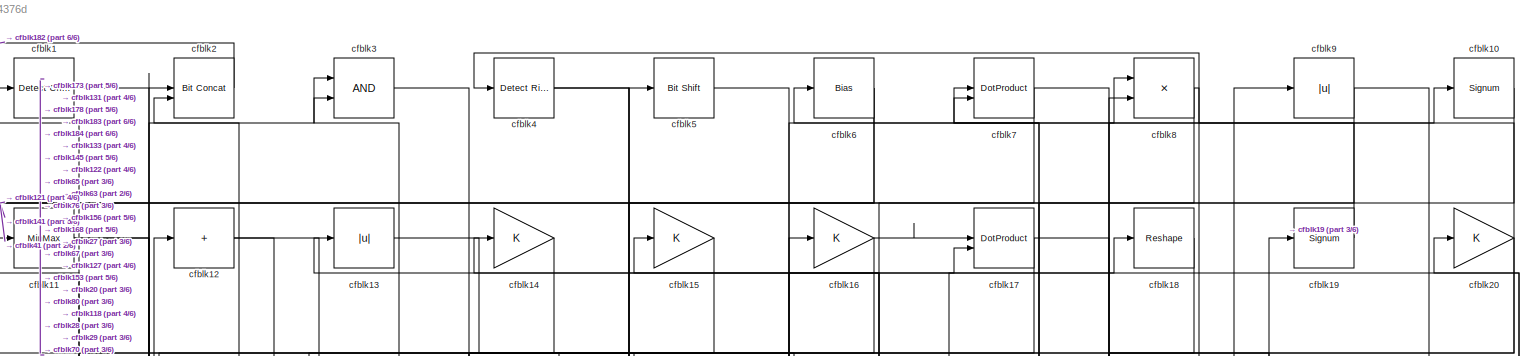
[diagram: root canvas - part 1/6, full width, top band]
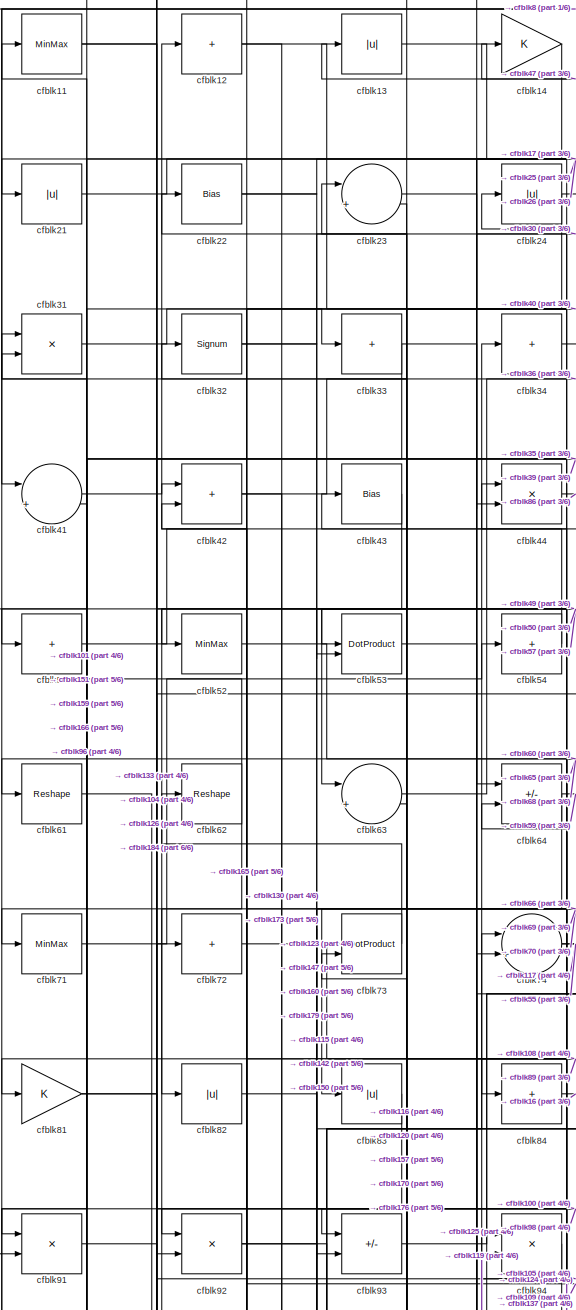
[diagram: root canvas - part 2/6, top left region]
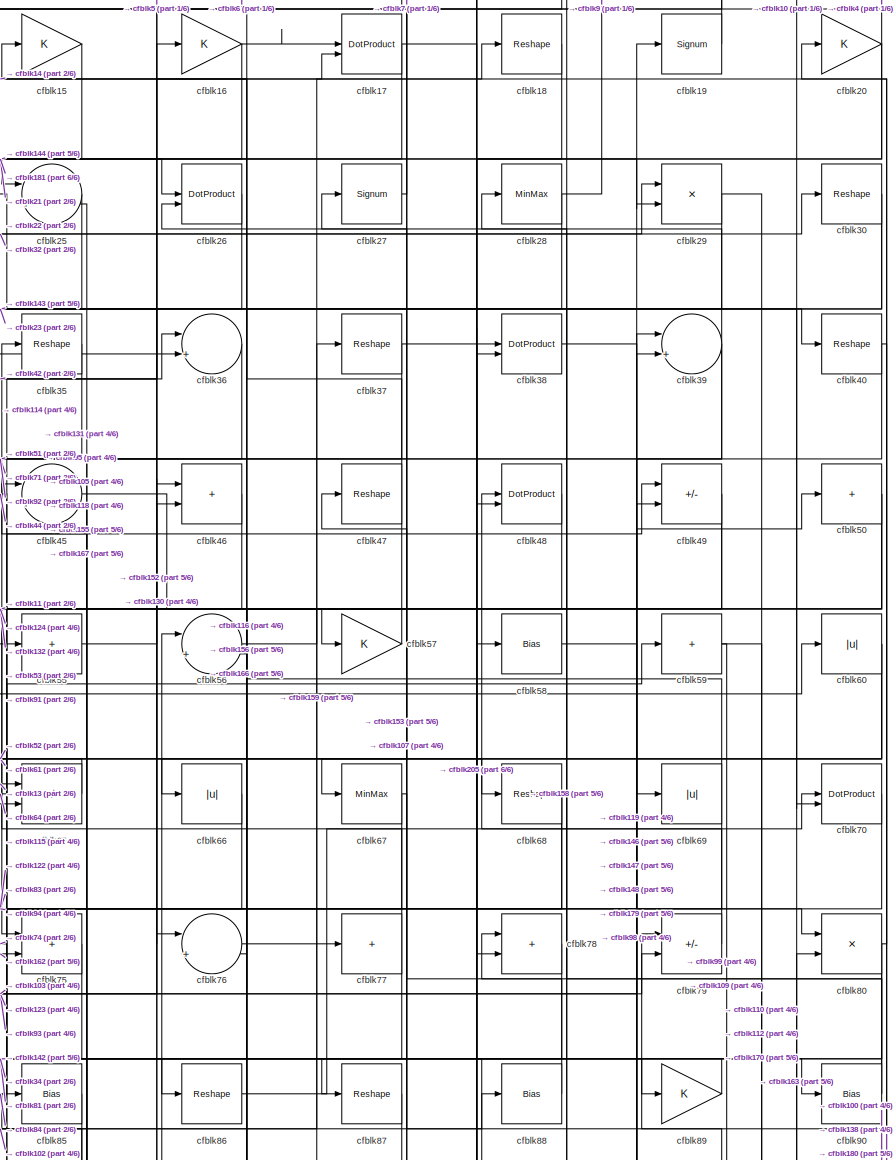
[diagram: root canvas - part 3/6, top right region]
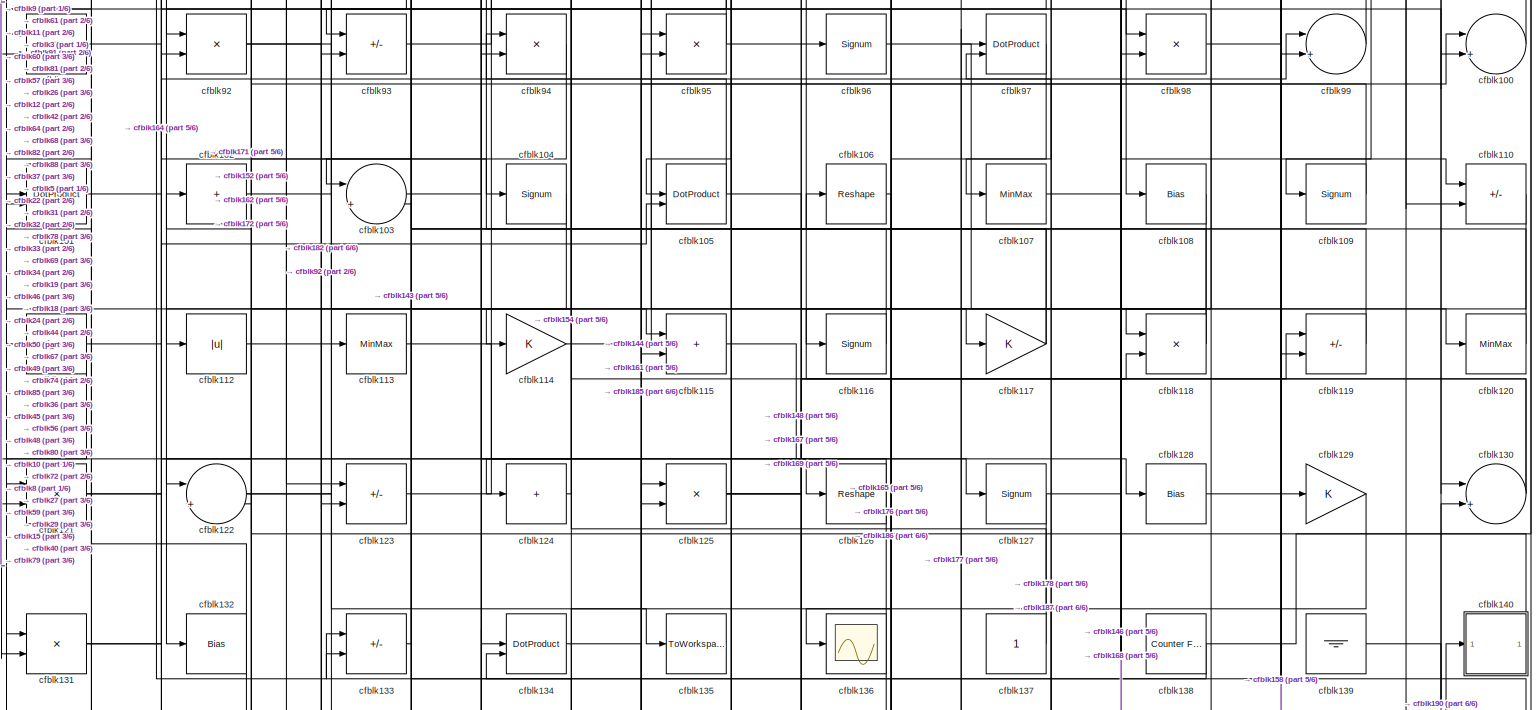
[diagram: root canvas - part 4/6, full width, middle band]
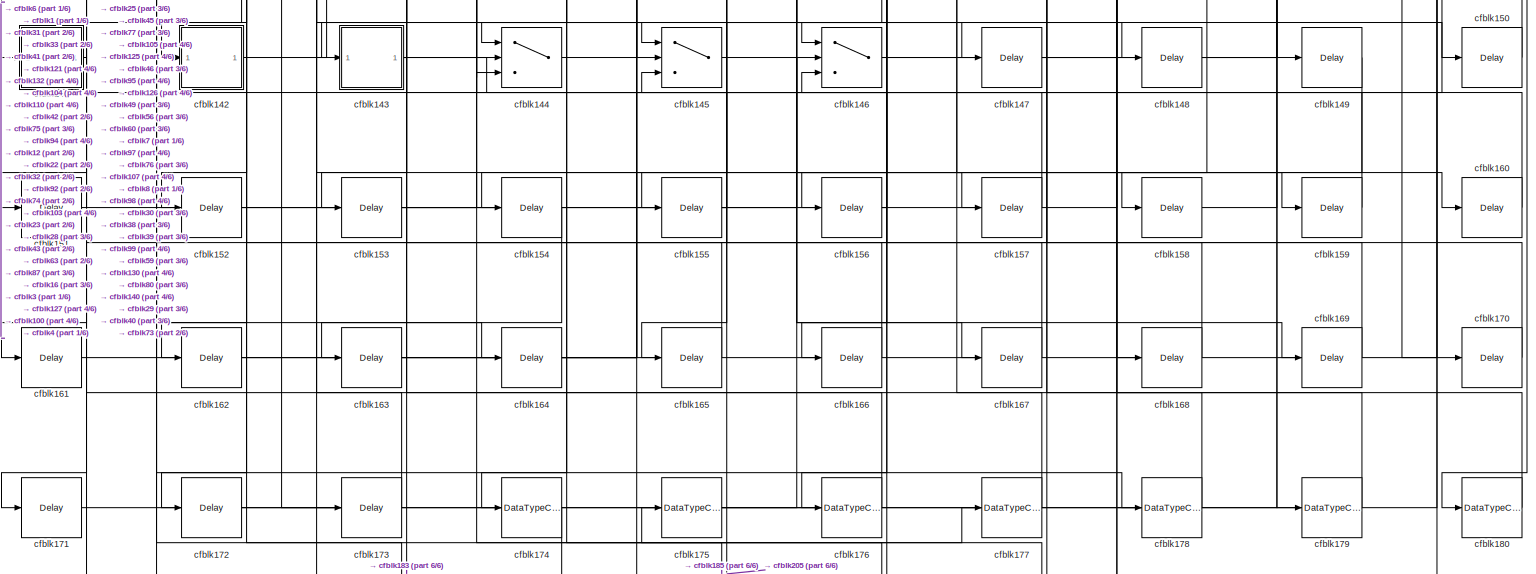
[diagram: root canvas - part 5/6, full width, bottom band]
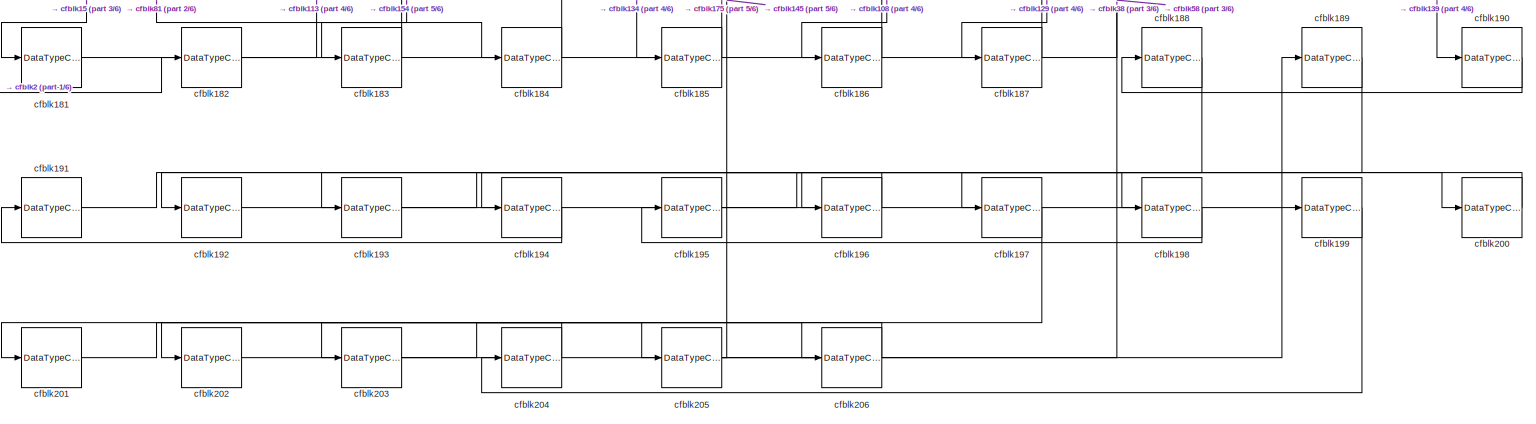
[diagram: root canvas - part 6/6, full width, bottom band]
MODEL slx_11661004376d
KIND model
CONFIG AbsTol = auto
CONFIG EnableMultiTasking = off
CONFIG FixedStep = auto
CONFIG MaxStep = auto
CONFIG MinStep = auto
CONFIG RelTol = 1e-3
CONFIG SampleTimeConstraint = Unconstrained
CONFIG SolverName = VariableStepAuto
CONFIG StartTime = 0.0
CONFIG StopTime = 10.0
BLOCK [Reference] cfblk1  REF=simulink/Logic and Bit
Operations/Detect
Change
  LibrarySourceBlock = hdlsllib/Logic and Bit\nOperations/Detect\nChange
  SourceBlock = simulink/Logic and Bit\nOperations/Detect\nChange
  SourceType = Detect Change
BLOCK [Signum] cfblk10
BLOCK [Sum] cfblk100
  Inputs = |++
BLOCK [DotProduct] cfblk101
  OutDataTypeStr = Inherit: Inherit via internal rule
BLOCK [Sum] cfblk102
  IconShape = rectangular
  Inputs = +
BLOCK [Sum] cfblk103
  Inputs = |++
BLOCK [Signum] cfblk104
BLOCK [DotProduct] cfblk105
  OutDataTypeStr = Inherit: Inherit via internal rule
BLOCK [Reshape] cfblk106
BLOCK [MinMax] cfblk107
BLOCK [Bias] cfblk108
  Bias = 0.0
  SaturateOnIntegerOverflow = off
BLOCK [Signum] cfblk109
BLOCK [MinMax] cfblk11
BLOCK [Sum] cfblk110
  IconShape = rectangular
  Inputs = +-
BLOCK [Signum] cfblk111
BLOCK [Abs] cfblk112
  SaturateOnIntegerOverflow = off
BLOCK [MinMax] cfblk113
BLOCK [Gain] cfblk114
BLOCK [Sum] cfblk115
  IconShape = rectangular
BLOCK [Signum] cfblk116
BLOCK [Gain] cfblk117
BLOCK [Product] cfblk118
  Inputs = */
  RndMeth = Zero
  SaturateOnIntegerOverflow = on
BLOCK [Sum] cfblk119
  IconShape = rectangular
  Inputs = +-
BLOCK [Sum] cfblk12
  IconShape = rectangular
  Inputs = +
BLOCK [MinMax] cfblk120
BLOCK [Product] cfblk121
  Inputs = */
  RndMeth = Zero
  SaturateOnIntegerOverflow = on
BLOCK [Sum] cfblk122
  Inputs = |++
BLOCK [Sum] cfblk123
  IconShape = rectangular
  Inputs = +-
BLOCK [Sum] cfblk124
  IconShape = rectangular
  Inputs = +
BLOCK [Product] cfblk125
  Inputs = */
  RndMeth = Zero
  SaturateOnIntegerOverflow = on
BLOCK [Reshape] cfblk126
BLOCK [Signum] cfblk127
BLOCK [Bias] cfblk128
  Bias = 0.0
  SaturateOnIntegerOverflow = off
BLOCK [Gain] cfblk129
BLOCK [Abs] cfblk13
  SaturateOnIntegerOverflow = off
BLOCK [Sum] cfblk130
  Inputs = |++
BLOCK [Product] cfblk131
  Inputs = */
  RndMeth = Zero
  SaturateOnIntegerOverflow = on
BLOCK [Bias] cfblk132
  Bias = 0.0
  SaturateOnIntegerOverflow = off
BLOCK [Sum] cfblk133
  IconShape = rectangular
  Inputs = +-
BLOCK [DotProduct] cfblk134
  OutDataTypeStr = Inherit: Inherit via internal rule
BLOCK [ToWorkspace] cfblk135
  MaxDataPoints = inf
  SampleTime = -1
  SaveFormat = Timeseries
  VariableName = simout
BLOCK [Scope] cfblk136
  Floating = off
  NumInputPorts = 1
  ScopeSpecificationString = Simulink.scopes.TimeScopeBlockCfg('CurrentConfiguration', extmgr.ConfigurationSet(extmgr.Configuration('Core','General UI',true),extmgr.Configuration('Core','Source UI',true),extmgr.Configuration('Sources','WiredSimulink',true,'DataLoggingVariableName','ScopeData2','DataLoggingSaveFormat','Array','DataLoggingLimitDataPoints',true,'DataLoggingDecimation','1'),extmgr.Configuration('Visuals','Time Do...<+868ch>
BLOCK [Constant] cfblk137
  SampleTime = -1
BLOCK [Reference] cfblk138  REF=hdlsllib/Sources/Counter
Free-Running
  SourceBlock = hdlsllib/Sources/Counter\nFree-Running
  SourceType = Counter Free-Running
BLOCK [Ground] cfblk139
BLOCK [Gain] cfblk14
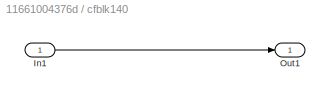
BLOCK [SubSystem] cfblk140
  LibrarySourceBlock = hdlsllib/Ports &\nSubsystems/Subsystem
BLOCK [Inport] cfblk140/In1
BLOCK [Outport] cfblk140/Out1
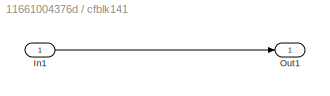
BLOCK [SubSystem] cfblk141
  LibrarySourceBlock = hdlsllib/Ports &\nSubsystems/Subsystem
BLOCK [Inport] cfblk141/In1
BLOCK [Outport] cfblk141/Out1
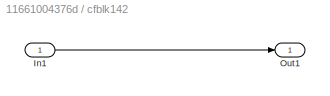
BLOCK [SubSystem] cfblk142
  LibrarySourceBlock = hdlsllib/Ports &\nSubsystems/Subsystem
BLOCK [Inport] cfblk142/In1
BLOCK [Outport] cfblk142/Out1
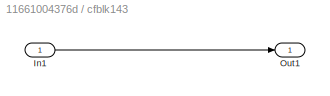
BLOCK [SubSystem] cfblk143
  LibrarySourceBlock = hdlsllib/Ports &\nSubsystems/Subsystem
BLOCK [Inport] cfblk143/In1
BLOCK [Outport] cfblk143/Out1
BLOCK [Switch] cfblk144
  InputSameDT = off
  SaturateOnIntegerOverflow = off
BLOCK [Switch] cfblk145
  InputSameDT = off
  SaturateOnIntegerOverflow = off
BLOCK [Switch] cfblk146
  InputSameDT = off
  SaturateOnIntegerOverflow = off
BLOCK [Delay] cfblk147
  InputPortMap = u0
  SampleTime = 1
BLOCK [Delay] cfblk148
  InputPortMap = u0
  SampleTime = 1
BLOCK [Delay] cfblk149
  InputPortMap = u0
  SampleTime = 1
BLOCK [Gain] cfblk15
BLOCK [Delay] cfblk150
  InputPortMap = u0
  SampleTime = 1
BLOCK [Delay] cfblk151
  InputPortMap = u0
  SampleTime = 1
BLOCK [Delay] cfblk152
  InputPortMap = u0
  SampleTime = 1
BLOCK [Delay] cfblk153
  InputPortMap = u0
  SampleTime = 1
BLOCK [Delay] cfblk154
  InputPortMap = u0
  SampleTime = 1
BLOCK [Delay] cfblk155
  InputPortMap = u0
  SampleTime = 1
BLOCK [Delay] cfblk156
  InputPortMap = u0
  SampleTime = 1
BLOCK [Delay] cfblk157
  InputPortMap = u0
  SampleTime = 1
BLOCK [Delay] cfblk158
  InputPortMap = u0
  SampleTime = 1
BLOCK [Delay] cfblk159
  InputPortMap = u0
  SampleTime = 1
BLOCK [Gain] cfblk16
BLOCK [Delay] cfblk160
  InputPortMap = u0
  SampleTime = 1
BLOCK [Delay] cfblk161
  InputPortMap = u0
  SampleTime = 1
BLOCK [Delay] cfblk162
  InputPortMap = u0
  SampleTime = 1
BLOCK [Delay] cfblk163
  InputPortMap = u0
  SampleTime = 1
BLOCK [Delay] cfblk164
  InputPortMap = u0
  SampleTime = 1
BLOCK [Delay] cfblk165
  InputPortMap = u0
  SampleTime = 1
BLOCK [Delay] cfblk166
  InputPortMap = u0
  SampleTime = 1
BLOCK [Delay] cfblk167
  InputPortMap = u0
  SampleTime = 1
BLOCK [Delay] cfblk168
  InputPortMap = u0
  SampleTime = 1
BLOCK [Delay] cfblk169
  InputPortMap = u0
  SampleTime = 1
BLOCK [DotProduct] cfblk17
  OutDataTypeStr = Inherit: Inherit via internal rule
BLOCK [Delay] cfblk170
  InputPortMap = u0
  SampleTime = 1
BLOCK [Delay] cfblk171
  InputPortMap = u0
  SampleTime = 1
BLOCK [Delay] cfblk172
  InputPortMap = u0
  SampleTime = 1
BLOCK [Delay] cfblk173
  InputPortMap = u0
  SampleTime = 1
BLOCK [DataTypeConversion] cfblk174
  OutDataTypeStr = uint8
  RndMeth = Floor
  SaturateOnIntegerOverflow = off
BLOCK [DataTypeConversion] cfblk175
  OutDataTypeStr = uint8
  RndMeth = Floor
  SaturateOnIntegerOverflow = off
BLOCK [DataTypeConversion] cfblk176
  OutDataTypeStr = uint8
  RndMeth = Floor
  SaturateOnIntegerOverflow = off
BLOCK [DataTypeConversion] cfblk177
  OutDataTypeStr = uint8
  RndMeth = Floor
  SaturateOnIntegerOverflow = off
BLOCK [DataTypeConversion] cfblk178
  OutDataTypeStr = uint8
  RndMeth = Floor
  SaturateOnIntegerOverflow = off
BLOCK [DataTypeConversion] cfblk179
  OutDataTypeStr = uint8
  RndMeth = Floor
  SaturateOnIntegerOverflow = off
BLOCK [Reshape] cfblk18
BLOCK [DataTypeConversion] cfblk180
  OutDataTypeStr = uint8
  RndMeth = Floor
  SaturateOnIntegerOverflow = off
BLOCK [DataTypeConversion] cfblk181
  OutDataTypeStr = uint8
  RndMeth = Floor
  SaturateOnIntegerOverflow = off
BLOCK [DataTypeConversion] cfblk182
  OutDataTypeStr = uint8
  RndMeth = Floor
  SaturateOnIntegerOverflow = off
BLOCK [DataTypeConversion] cfblk183
  OutDataTypeStr = uint8
  RndMeth = Floor
  SaturateOnIntegerOverflow = off
BLOCK [DataTypeConversion] cfblk184
  OutDataTypeStr = uint8
  RndMeth = Floor
  SaturateOnIntegerOverflow = off
BLOCK [DataTypeConversion] cfblk185
  OutDataTypeStr = uint8
  RndMeth = Floor
  SaturateOnIntegerOverflow = off
BLOCK [DataTypeConversion] cfblk186
  OutDataTypeStr = uint8
  RndMeth = Floor
  SaturateOnIntegerOverflow = off
BLOCK [DataTypeConversion] cfblk187
  OutDataTypeStr = uint8
  RndMeth = Floor
  SaturateOnIntegerOverflow = off
BLOCK [DataTypeConversion] cfblk188
  RndMeth = Floor
  SaturateOnIntegerOverflow = off
BLOCK [DataTypeConversion] cfblk189
  RndMeth = Floor
  SaturateOnIntegerOverflow = off
BLOCK [Signum] cfblk19
BLOCK [DataTypeConversion] cfblk190
  OutDataTypeStr = uint8
  RndMeth = Floor
  SaturateOnIntegerOverflow = off
BLOCK [DataTypeConversion] cfblk191
  RndMeth = Floor
  SaturateOnIntegerOverflow = off
BLOCK [DataTypeConversion] cfblk192
  OutDataTypeStr = uint8
  RndMeth = Floor
  SaturateOnIntegerOverflow = off
BLOCK [DataTypeConversion] cfblk193
  RndMeth = Floor
  SaturateOnIntegerOverflow = off
BLOCK [DataTypeConversion] cfblk194
  OutDataTypeStr = uint8
  RndMeth = Floor
  SaturateOnIntegerOverflow = off
BLOCK [DataTypeConversion] cfblk195
  RndMeth = Floor
  SaturateOnIntegerOverflow = off
BLOCK [DataTypeConversion] cfblk196
  OutDataTypeStr = uint8
  RndMeth = Floor
  SaturateOnIntegerOverflow = off
BLOCK [DataTypeConversion] cfblk197
  RndMeth = Floor
  SaturateOnIntegerOverflow = off
BLOCK [DataTypeConversion] cfblk198
  OutDataTypeStr = uint8
  RndMeth = Floor
  SaturateOnIntegerOverflow = off
BLOCK [DataTypeConversion] cfblk199
  RndMeth = Floor
  SaturateOnIntegerOverflow = off
BLOCK [Reference] cfblk2  REF=hdlsllib/Logic and Bit
Operations/Bit Concat
  SourceBlock = hdlsllib/Logic and Bit\nOperations/Bit Concat
  SourceType = Bit Concat
BLOCK [Gain] cfblk20
BLOCK [DataTypeConversion] cfblk200
  OutDataTypeStr = uint8
  RndMeth = Floor
  SaturateOnIntegerOverflow = off
BLOCK [DataTypeConversion] cfblk201
  RndMeth = Floor
  SaturateOnIntegerOverflow = off
BLOCK [DataTypeConversion] cfblk202
  OutDataTypeStr = uint8
  RndMeth = Floor
  SaturateOnIntegerOverflow = off
BLOCK [DataTypeConversion] cfblk203
  RndMeth = Floor
  SaturateOnIntegerOverflow = off
BLOCK [DataTypeConversion] cfblk204
  OutDataTypeStr = uint8
  RndMeth = Floor
  SaturateOnIntegerOverflow = off
BLOCK [DataTypeConversion] cfblk205
  RndMeth = Floor
  SaturateOnIntegerOverflow = off
BLOCK [DataTypeConversion] cfblk206
  OutDataTypeStr = uint8
  RndMeth = Floor
  SaturateOnIntegerOverflow = off
BLOCK [Abs] cfblk21
  SaturateOnIntegerOverflow = off
BLOCK [Bias] cfblk22
  Bias = 0.0
  SaturateOnIntegerOverflow = off
BLOCK [Sum] cfblk23
  Inputs = |++
BLOCK [Abs] cfblk24
  SaturateOnIntegerOverflow = off
BLOCK [Sum] cfblk25
  Inputs = |++
BLOCK [DotProduct] cfblk26
  OutDataTypeStr = Inherit: Inherit via internal rule
BLOCK [Signum] cfblk27
BLOCK [MinMax] cfblk28
BLOCK [Product] cfblk29
  Inputs = */
  RndMeth = Zero
  SaturateOnIntegerOverflow = on
BLOCK [Logic] cfblk3
  AllPortsSameDT = off
  OutDataTypeStr = boolean
BLOCK [Reshape] cfblk30
BLOCK [Product] cfblk31
  Inputs = */
  RndMeth = Zero
  SaturateOnIntegerOverflow = on
BLOCK [Signum] cfblk32
BLOCK [Sum] cfblk33
  IconShape = rectangular
  Inputs = +
BLOCK [Sum] cfblk34
  IconShape = rectangular
  Inputs = +
BLOCK [Reshape] cfblk35
BLOCK [Sum] cfblk36
  Inputs = |++
BLOCK [Reshape] cfblk37
BLOCK [DotProduct] cfblk38
  OutDataTypeStr = Inherit: Inherit via internal rule
BLOCK [Sum] cfblk39
  Inputs = |++
BLOCK [Reference] cfblk4  REF=hdlsllib/Logic and Bit
Operations/Detect Rise
Positive
  SourceBlock = hdlsllib/Logic and Bit\nOperations/Detect Rise\nPositive
  SourceType = Detect Rise Positive
BLOCK [Reshape] cfblk40
BLOCK [Sum] cfblk41
  Inputs = |++
BLOCK [Sum] cfblk42
  IconShape = rectangular
BLOCK [Bias] cfblk43
  Bias = 0.0
  SaturateOnIntegerOverflow = off
BLOCK [Product] cfblk44
  Inputs = */
  RndMeth = Zero
  SaturateOnIntegerOverflow = on
BLOCK [Sum] cfblk45
  Inputs = |++
BLOCK [Sum] cfblk46
  IconShape = rectangular
BLOCK [Reshape] cfblk47
BLOCK [DotProduct] cfblk48
  OutDataTypeStr = Inherit: Inherit via internal rule
BLOCK [Sum] cfblk49
  IconShape = rectangular
  Inputs = +-
BLOCK [Reference] cfblk5  REF=hdlsllib/Logic and Bit
Operations/Bit Shift
  SourceBlock = hdlsllib/Logic and Bit\nOperations/Bit Shift
  SourceType = Bit Shift
BLOCK [Sum] cfblk50
  IconShape = rectangular
  Inputs = +
BLOCK [Sum] cfblk51
  IconShape = rectangular
  Inputs = +
BLOCK [MinMax] cfblk52
BLOCK [DotProduct] cfblk53
  OutDataTypeStr = Inherit: Inherit via internal rule
BLOCK [Sum] cfblk54
  IconShape = rectangular
  Inputs = +
BLOCK [Sum] cfblk55
  IconShape = rectangular
  Inputs = +
BLOCK [Sum] cfblk56
  Inputs = |++
BLOCK [Gain] cfblk57
BLOCK [Bias] cfblk58
  Bias = 0.0
  SaturateOnIntegerOverflow = off
BLOCK [Sum] cfblk59
  IconShape = rectangular
  Inputs = +
BLOCK [Bias] cfblk6
  Bias = 0.0
  SaturateOnIntegerOverflow = off
BLOCK [Abs] cfblk60
  SaturateOnIntegerOverflow = off
BLOCK [Reshape] cfblk61
BLOCK [Reshape] cfblk62
BLOCK [Sum] cfblk63
  Inputs = |++
BLOCK [Sum] cfblk64
  IconShape = rectangular
  Inputs = +-
BLOCK [Sum] cfblk65
  IconShape = rectangular
  Inputs = +-
BLOCK [Abs] cfblk66
  SaturateOnIntegerOverflow = off
BLOCK [MinMax] cfblk67
BLOCK [Reshape] cfblk68
BLOCK [Abs] cfblk69
  SaturateOnIntegerOverflow = off
BLOCK [DotProduct] cfblk7
  OutDataTypeStr = Inherit: Inherit via internal rule
BLOCK [DotProduct] cfblk70
  OutDataTypeStr = Inherit: Inherit via internal rule
BLOCK [MinMax] cfblk71
BLOCK [Sum] cfblk72
  IconShape = rectangular
  Inputs = +
BLOCK [DotProduct] cfblk73
  OutDataTypeStr = Inherit: Inherit via internal rule
BLOCK [Sum] cfblk74
  Inputs = |++
BLOCK [Sum] cfblk75
  IconShape = rectangular
BLOCK [Sum] cfblk76
  Inputs = |++
BLOCK [Sum] cfblk77
  IconShape = rectangular
  Inputs = +
BLOCK [Sum] cfblk78
  IconShape = rectangular
BLOCK [Sum] cfblk79
  IconShape = rectangular
  Inputs = +-
BLOCK [Product] cfblk8
  Inputs = */
  RndMeth = Zero
  SaturateOnIntegerOverflow = on
BLOCK [Product] cfblk80
  Inputs = */
  RndMeth = Zero
  SaturateOnIntegerOverflow = on
BLOCK [Gain] cfblk81
BLOCK [Abs] cfblk82
  SaturateOnIntegerOverflow = off
BLOCK [Abs] cfblk83
  SaturateOnIntegerOverflow = off
BLOCK [Sum] cfblk84
  IconShape = rectangular
  Inputs = +
BLOCK [Bias] cfblk85
  Bias = 0.0
  SaturateOnIntegerOverflow = off
BLOCK [Reshape] cfblk86
BLOCK [Reshape] cfblk87
BLOCK [Bias] cfblk88
  Bias = 0.0
  SaturateOnIntegerOverflow = off
BLOCK [Gain] cfblk89
BLOCK [Abs] cfblk9
  SaturateOnIntegerOverflow = off
BLOCK [Bias] cfblk90
  Bias = 0.0
  SaturateOnIntegerOverflow = off
BLOCK [Product] cfblk91
  Inputs = */
  RndMeth = Zero
  SaturateOnIntegerOverflow = on
BLOCK [Product] cfblk92
  Inputs = */
  RndMeth = Zero
  SaturateOnIntegerOverflow = on
BLOCK [Sum] cfblk93
  IconShape = rectangular
  Inputs = +-
BLOCK [Product] cfblk94
  Inputs = */
  RndMeth = Zero
  SaturateOnIntegerOverflow = on
BLOCK [Product] cfblk95
  Inputs = */
  RndMeth = Zero
  SaturateOnIntegerOverflow = on
BLOCK [Signum] cfblk96
BLOCK [DotProduct] cfblk97
  OutDataTypeStr = Inherit: Inherit via internal rule
BLOCK [Product] cfblk98
  Inputs = */
  RndMeth = Zero
  SaturateOnIntegerOverflow = on
BLOCK [Sum] cfblk99
  Inputs = |++
LINE cfblk100:1 -> cfblk79:1
LINE cfblk101:1 -> cfblk72:1
LINE cfblk102:1 -> cfblk37:1
LINE cfblk103:1 -> cfblk79:2
LINE cfblk104:1 -> cfblk152:1
NET cfblk105:1 -> cfblk148:1, cfblk44:1
LINE cfblk106:1 -> cfblk136:1
LINE cfblk107:1 -> cfblk168:1
LINE cfblk108:1 -> cfblk186:1
LINE cfblk109:1 -> cfblk42:1
LINE cfblk10:1 -> cfblk67:1
LINE cfblk110:1 -> cfblk162:1
NET cfblk111:1 -> cfblk131:2, cfblk99:1
LINE cfblk112:1 -> cfblk88:1
LINE cfblk113:1 -> cfblk127:1
LINE cfblk114:1 -> cfblk49:1
LINE cfblk115:1 -> cfblk128:1
LINE cfblk116:1 -> cfblk32:1
NET cfblk117:1 -> cfblk106:1, cfblk31:1
NET cfblk118:1 -> cfblk111:1, cfblk45:1
LINE cfblk119:1 -> cfblk34:1
NET cfblk11:1 -> cfblk100:2, cfblk57:1
LINE cfblk120:1 -> cfblk22:1
NET cfblk121:1 -> cfblk105:2, cfblk164:1
NET cfblk122:1 -> cfblk135:1, cfblk5:1
LINE cfblk123:1 -> cfblk46:1
LINE cfblk124:1 -> cfblk24:1
NET cfblk125:1 -> cfblk118:2, cfblk119:1, cfblk169:1
NET cfblk126:1 -> cfblk121:1, cfblk165:1
NET cfblk127:1 -> cfblk10:1, cfblk154:1
LINE cfblk128:1 -> cfblk129:1
LINE cfblk129:1 -> cfblk187:1
NET cfblk12:1 -> cfblk130:1, cfblk173:1
NET cfblk130:1 -> cfblk56:1, cfblk94:1
NET cfblk131:1 -> cfblk3:1, cfblk60:1
NET cfblk132:1 -> cfblk101:2, cfblk171:1
LINE cfblk133:1 -> cfblk3:2
LINE cfblk134:1 -> cfblk185:1
LINE cfblk137:1 -> cfblk64:2
NET cfblk138:1 -> cfblk133:2, cfblk15:1
LINE cfblk139:1 -> cfblk190:1
LINE cfblk13:1 -> cfblk65:1
LINE cfblk140/In1:1 -> cfblk140/Out1:1
LINE cfblk140:1 -> cfblk102:1
LINE cfblk141/In1:1 -> cfblk141/Out1:1
LINE cfblk141:1 -> cfblk161:1
LINE cfblk142/In1:1 -> cfblk142/Out1:1
LINE cfblk142:1 -> cfblk74:1
LINE cfblk143/In1:1 -> cfblk143/Out1:1
NET cfblk143:1 -> cfblk103:2, cfblk140:1, cfblk163:1, cfblk29:1
LINE cfblk144:1 -> cfblk100:1
LINE cfblk145:1 -> cfblk157:1
NET cfblk146:1 -> cfblk39:2, cfblk98:2
LINE cfblk147:1 -> cfblk39:1
LINE cfblk148:1 -> cfblk49:2
LINE cfblk149:1 -> cfblk174:1
LINE cfblk14:1 -> cfblk21:1
LINE cfblk150:1 -> cfblk73:2
LINE cfblk151:1 -> cfblk74:2
LINE cfblk152:1 -> cfblk46:2
LINE cfblk153:1 -> cfblk8:2
LINE cfblk154:1 -> cfblk183:1
LINE cfblk155:1 -> cfblk45:2
LINE cfblk156:1 -> cfblk56:2
LINE cfblk157:1 -> cfblk63:2
LINE cfblk158:1 -> cfblk99:2
LINE cfblk159:1 -> cfblk41:2
LINE cfblk15:1 -> cfblk181:1
LINE cfblk160:1 -> cfblk144:2
LINE cfblk161:1 -> cfblk95:1
LINE cfblk162:1 -> cfblk75:2
LINE cfblk163:1 -> cfblk80:2
LINE cfblk164:1 -> cfblk125:1
LINE cfblk165:1 -> cfblk42:2
LINE cfblk166:1 -> cfblk31:2
LINE cfblk167:1 -> cfblk25:2
LINE cfblk168:1 -> cfblk7:2
LINE cfblk169:1 -> cfblk146:3
NET cfblk16:1 -> cfblk144:3, cfblk17:1
LINE cfblk170:1 -> cfblk23:2
LINE cfblk171:1 -> cfblk146:2
LINE cfblk172:1 -> cfblk130:2
LINE cfblk173:1 -> cfblk1:1
LINE cfblk174:1 -> cfblk177:1
LINE cfblk175:1 -> cfblk149:1
LINE cfblk176:1 -> cfblk43:1
LINE cfblk177:1 -> cfblk97:1
LINE cfblk178:1 -> cfblk97:2
LINE cfblk179:1 -> cfblk73:1
NET cfblk17:1 -> cfblk44:2, cfblk90:1
LINE cfblk180:1 -> cfblk38:1
LINE cfblk181:1 -> cfblk38:2
LINE cfblk182:1 -> cfblk113:1
LINE cfblk183:1 -> cfblk2:1
LINE cfblk184:1 -> cfblk2:2
LINE cfblk185:1 -> cfblk175:1
LINE cfblk186:1 -> cfblk134:1
LINE cfblk187:1 -> cfblk134:2
LINE cfblk188:1 -> cfblk192:1
LINE cfblk189:1 -> cfblk194:1
LINE cfblk18:1 -> cfblk114:1
LINE cfblk190:1 -> cfblk188:1
LINE cfblk191:1 -> cfblk196:1
LINE cfblk192:1 -> cfblk189:1
LINE cfblk193:1 -> cfblk198:1
LINE cfblk194:1 -> cfblk191:1
LINE cfblk195:1 -> cfblk200:1
LINE cfblk196:1 -> cfblk193:1
LINE cfblk197:1 -> cfblk202:1
LINE cfblk198:1 -> cfblk195:1
LINE cfblk199:1 -> cfblk204:1
LINE cfblk19:1 -> cfblk6:1
LINE cfblk1:1 -> cfblk178:1
LINE cfblk200:1 -> cfblk197:1
LINE cfblk201:1 -> cfblk206:1
LINE cfblk202:1 -> cfblk199:1
LINE cfblk203:1 -> cfblk205:1
LINE cfblk204:1 -> cfblk201:1
NET cfblk205:1 -> cfblk145:3, cfblk58:1
LINE cfblk206:1 -> cfblk203:1
NET cfblk20:1 -> cfblk48:2, cfblk4:1, cfblk78:2
LINE cfblk21:1 -> cfblk26:1
NET cfblk22:1 -> cfblk147:1, cfblk25:1
LINE cfblk23:1 -> cfblk40:1
NET cfblk24:1 -> cfblk101:1, cfblk96:1
LINE cfblk25:1 -> cfblk53:1
LINE cfblk26:1 -> cfblk122:2
LINE cfblk27:1 -> cfblk7:1
NET cfblk28:1 -> cfblk143:1, cfblk9:1
NET cfblk29:1 -> cfblk110:2, cfblk112:1
LINE cfblk2:1 -> cfblk182:1
NET cfblk30:1 -> cfblk158:1, cfblk76:2
LINE cfblk31:1 -> cfblk33:1
NET cfblk32:1 -> cfblk160:1, cfblk30:1
NET cfblk33:1 -> cfblk125:2, cfblk151:1
LINE cfblk34:1 -> cfblk89:1
LINE cfblk35:1 -> cfblk92:2
LINE cfblk36:1 -> cfblk105:1
NET cfblk37:1 -> cfblk110:1, cfblk93:1
LINE cfblk38:1 -> cfblk179:1
NET cfblk39:1 -> cfblk26:2, cfblk51:1, cfblk71:1
LINE cfblk3:1 -> cfblk145:1
NET cfblk40:1 -> cfblk119:2, cfblk180:1
LINE cfblk41:1 -> cfblk12:1
NET cfblk42:1 -> cfblk123:1, cfblk36:1
LINE cfblk43:1 -> cfblk63:1
LINE cfblk44:1 -> cfblk86:1
LINE cfblk45:1 -> cfblk77:1
LINE cfblk46:1 -> cfblk75:1
NET cfblk47:1 -> cfblk14:1, cfblk66:1
LINE cfblk48:1 -> cfblk116:1
NET cfblk49:1 -> cfblk146:1, cfblk53:2
NET cfblk4:1 -> cfblk145:2, cfblk29:2
NET cfblk50:1 -> cfblk124:1, cfblk52:1, cfblk91:2
LINE cfblk51:1 -> cfblk36:2
LINE cfblk52:1 -> cfblk68:1
LINE cfblk53:1 -> cfblk64:1
LINE cfblk54:1 -> cfblk23:1
LINE cfblk55:1 -> cfblk17:2
LINE cfblk56:1 -> cfblk18:1
LINE cfblk57:1 -> cfblk132:1
LINE cfblk58:1 -> cfblk69:1
NET cfblk59:1 -> cfblk109:1, cfblk170:1
LINE cfblk5:1 -> cfblk76:1
NET cfblk60:1 -> cfblk144:1, cfblk166:1, cfblk84:1
LINE cfblk61:1 -> cfblk133:1
NET cfblk62:1 -> cfblk11:1, cfblk82:1
LINE cfblk63:1 -> cfblk8:1
NET cfblk64:1 -> cfblk123:2, cfblk59:1
LINE cfblk65:1 -> cfblk61:1
LINE cfblk66:1 -> cfblk91:1
NET cfblk67:1 -> cfblk115:2, cfblk87:1
NET cfblk68:1 -> cfblk122:1, cfblk93:2
NET cfblk69:1 -> cfblk13:1, cfblk94:2
NET cfblk6:1 -> cfblk141:1, cfblk65:2
LINE cfblk70:1 -> cfblk83:1
LINE cfblk71:1 -> cfblk54:1
LINE cfblk72:1 -> cfblk108:1
LINE cfblk73:1 -> cfblk62:1
NET cfblk74:1 -> cfblk117:1, cfblk55:1
LINE cfblk75:1 -> cfblk142:1
LINE cfblk76:1 -> cfblk159:1
NET cfblk77:1 -> cfblk155:1, cfblk35:1
LINE cfblk78:1 -> cfblk103:1
LINE cfblk79:1 -> cfblk48:1
NET cfblk7:1 -> cfblk156:1, cfblk80:1
NET cfblk80:1 -> cfblk107:1, cfblk20:1, cfblk95:2
NET cfblk81:1 -> cfblk104:1, cfblk184:1
LINE cfblk82:1 -> cfblk98:1
LINE cfblk83:1 -> cfblk92:1
LINE cfblk84:1 -> cfblk16:1
LINE cfblk85:1 -> cfblk131:1
LINE cfblk86:1 -> cfblk70:1
LINE cfblk87:1 -> cfblk153:1
LINE cfblk88:1 -> cfblk78:1
LINE cfblk89:1 -> cfblk81:1
NET cfblk8:1 -> cfblk118:1, cfblk41:1
NET cfblk90:1 -> cfblk28:1, cfblk47:1
LINE cfblk91:1 -> cfblk126:1
NET cfblk92:1 -> cfblk115:1, cfblk150:1
LINE cfblk93:1 -> cfblk19:1
LINE cfblk94:1 -> cfblk172:1
NET cfblk95:1 -> cfblk167:1, cfblk85:1
LINE cfblk96:1 -> cfblk120:1
LINE cfblk97:1 -> cfblk176:1
LINE cfblk98:1 -> cfblk50:1
LINE cfblk99:1 -> cfblk27:1
NET cfblk9:1 -> cfblk121:2, cfblk70:2
note: NET lines group one-source signal fan-out (src -> all destinations, sorted); 1:1 wires keep LINE
